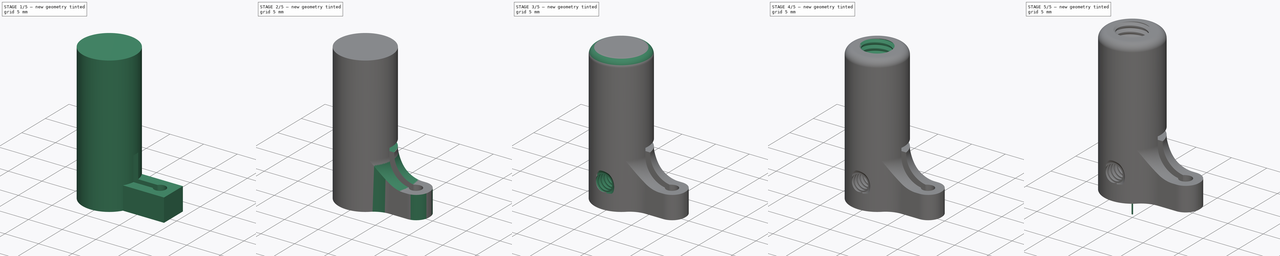
[diagram: build sequence overview — one tinted view per stage of 5, left to right]
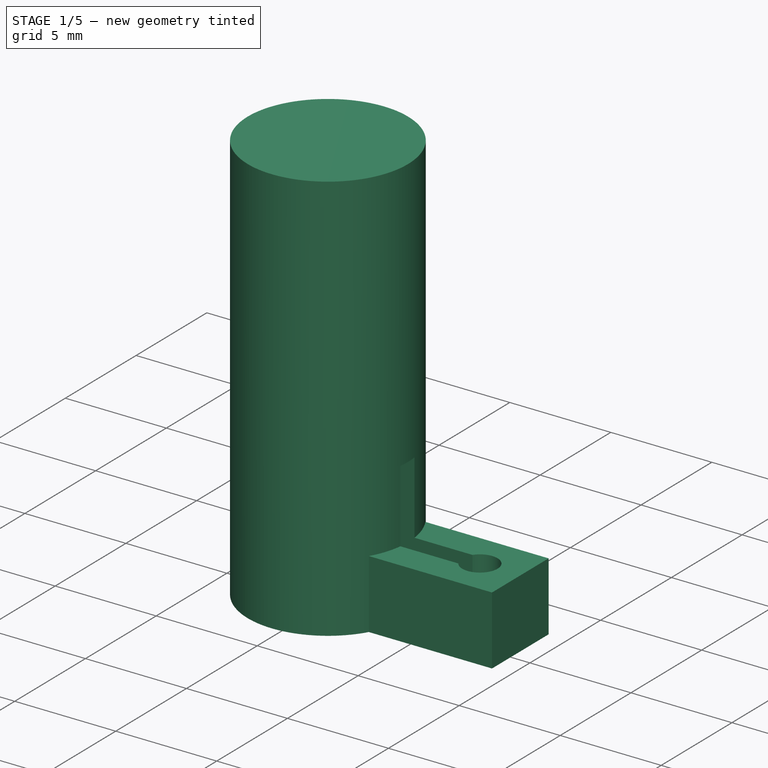
[diagram: stage 1 of 5 — iso view after this stage's code; geometry added in this stage tinted green]
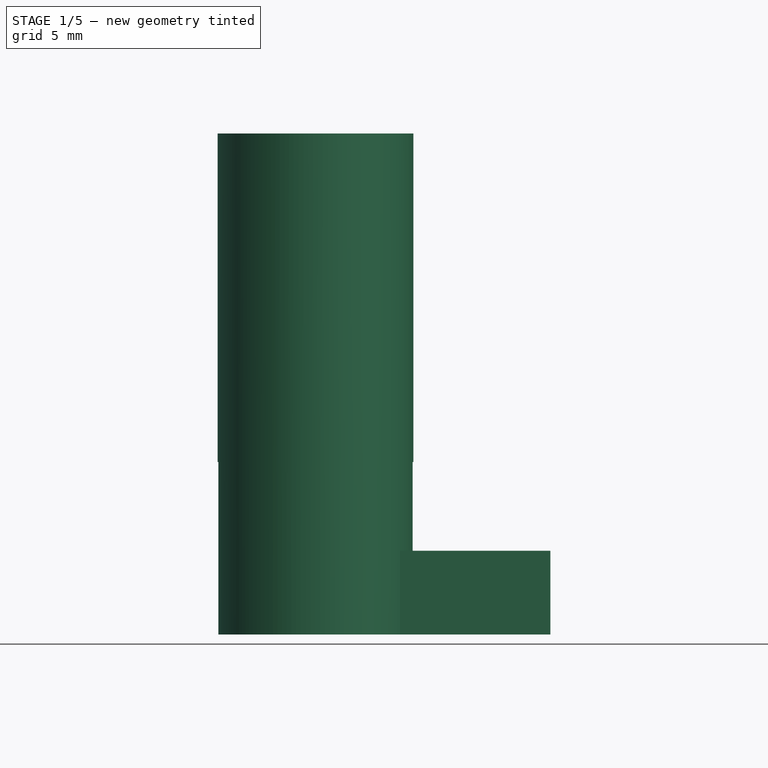
[diagram: stage 1 of 5 — front view after this stage's code; geometry added in this stage tinted green]
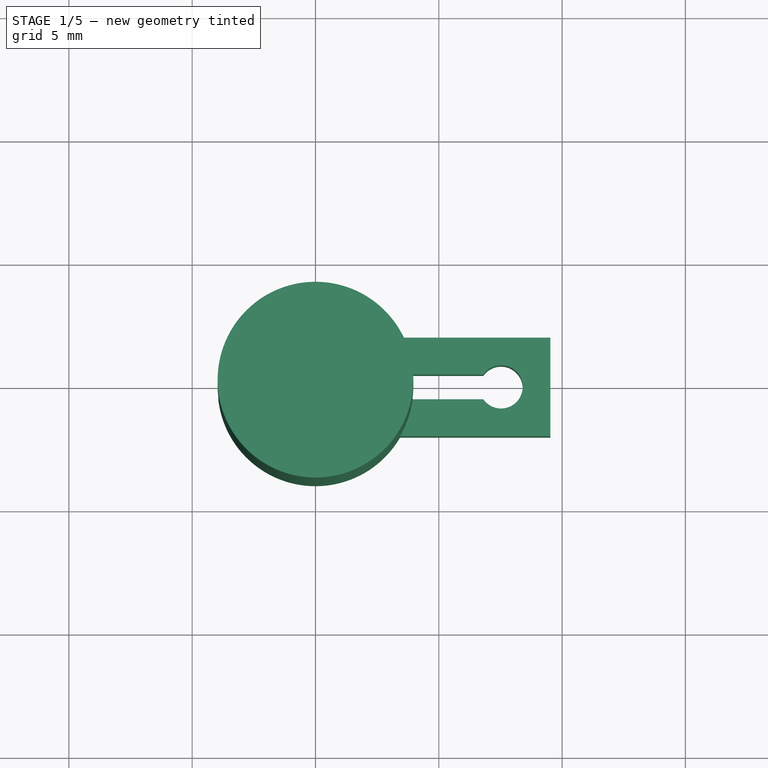
[diagram: stage 1 of 5 — top view after this stage's code; geometry added in this stage tinted green]
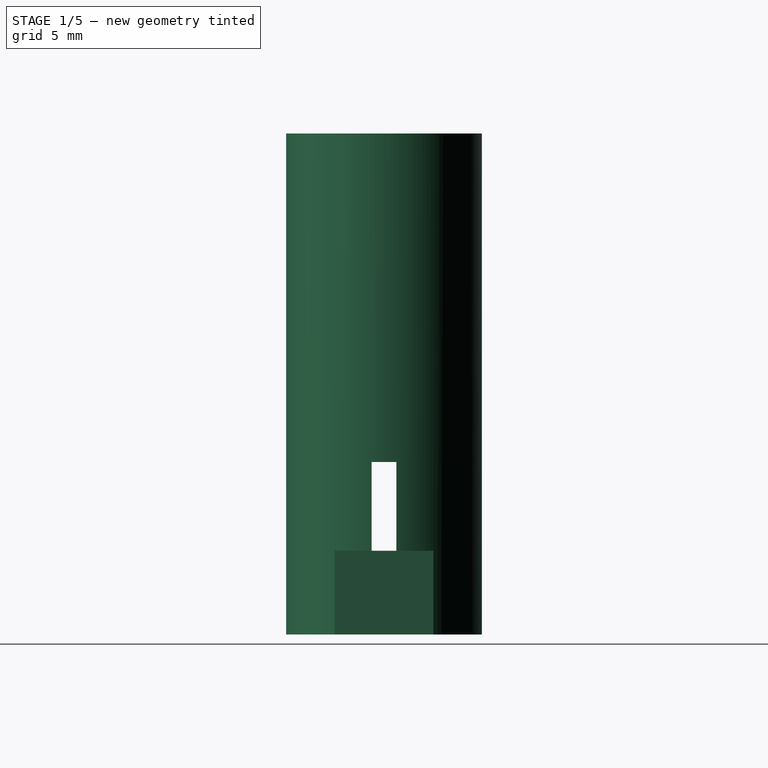
[diagram: stage 1 of 5 — right view after this stage's code; geometry added in this stage tinted green]
FCSTD DOCUMENT  (FreeCAD 0.21R33668 +7 (Git))
Label: Stereotax acute cannula holder v3
License: All rights reserved
LicenseURL: http://en.wikipedia.org/wiki/All_rights_reserved
objects: Sketcher::SketchObject×12, PartDesign::Pocket×6, PartDesign::Pad×4, PartDesign::Fillet×3, PartDesign::Body×2, PartDesign::SubtractiveHelix×2, PartDesign::Chamfer×1, Spreadsheet::Sheet×1
note: 46 computed .brp shape members not serialized (recipe doc carries the construction recipe); baked Part::Feature solids carry a one-line shape summary decoded from their .brp

FEATURE [Sketcher::SketchObject] Sketch  label="Rod profile"
  FullyConstrained = true
  MapMode = 5
  Support = -> [XY_Plane]
  sketch-geometry (1):
    g0: Circle CenterX=0 CenterY=0 CenterZ=0 NormalX=0 NormalY=0 NormalZ=1 AngleXU=0 Radius=3.96875
  constraints (2):
    c: Coincident(g0,g-1)
    c: Diameter(g0) = 7.9375
FEATURE [PartDesign::Pad] Pad
  Direction = (0,0,1)
  Length = 20.32
  Length2 = 10
  Profile = -> Sketch
  ReferenceAxis = -> Sketch [N_Axis]
  Type = 0
  expr: Length = <<params>>.ol
FEATURE [PartDesign::Body] Body001  label="Doric Cannula MFC_ZF1.25"
  Group = -> [Sketch002,Pad001,Chamfer,Sketch003,Sketch004,Pad002,Pocket]
  Origin = -> Origin001
  Placement = pos=(7.52856,0,0) rot=(0,0,1;0rad)
  Tip = -> Pocket
FEATURE [PartDesign::Pad] Pad003
  BaseFeature = -> Pad
  Direction = (0,-1,-2e-16)
  Length = 4
  Length2 = 10
  Midplane = true
  Profile = -> Sketch001
  ReferenceAxis = -> Sketch001 [N_Axis]
  Type = 0
  expr: Length = 4 mm
FEATURE [Sketcher::SketchObject] Sketch005  label="Slot"
  FullyConstrained = true
  MapMode = 5
  Placement = pos=(0,-8e-16,3.4) rot=(0,0,1;0rad)
  Support = -> [Pad003]
  expr: Constraints[0] = Spreadsheet.chd
  expr: Constraints[11] = <<params>>.hal - <<params>>.haw / 2
  expr: Constraints[6] = <<params>>.sw
  sketch-geometry (4):
    g0: ArcOfCircle CenterX=7.525 CenterY=3e-16 CenterZ=0 NormalX=0 NormalY=0 NormalZ=1 AngleXU=0 Radius=0.875 StartAngle=3.74984 EndAngle=8.81653
    g1: LineSegment StartX=6.80693 StartY=-0.5 StartZ=0 EndX=-6.35 EndY=-0.5 EndZ=0
    g2: LineSegment StartX=-6.35 StartY=0.5 StartZ=0 EndX=6.80693 EndY=0.5 EndZ=0
    g3: LineSegment StartX=-6.35 StartY=0.5 StartZ=0 EndX=-6.35 EndY=-0.5 EndZ=0
  constraints (12):
    c: Diameter(g0) = 1.75
    c: Symmetric(g0,g0,g-1)
    c: Horizontal(g2)
    c: Coincident(g0,g2)
    c: Coincident(g0,g1)
    c: Horizontal(g1)
    c: DistanceY(g0,g0) = 1
    c: Coincident(g3,g2)
    c: Coincident(g3,g1)
    c: Vertical(g3)
    c: DistanceX(g2) = -6.35
    c: DistanceX(g0) = 7.525
FEATURE [PartDesign::Pocket] Pocket001
  BaseFeature = -> Pad003
  Direction = (0,2e-16,-1)
  Length = 12.7
  Length2 = 3.596
  Profile = -> Sketch005
  ReferenceAxis = -> Sketch005 [N_Axis]
  Type = 4
  expr: Length2 = Spreadsheet.fch - Spreadsheet.hah
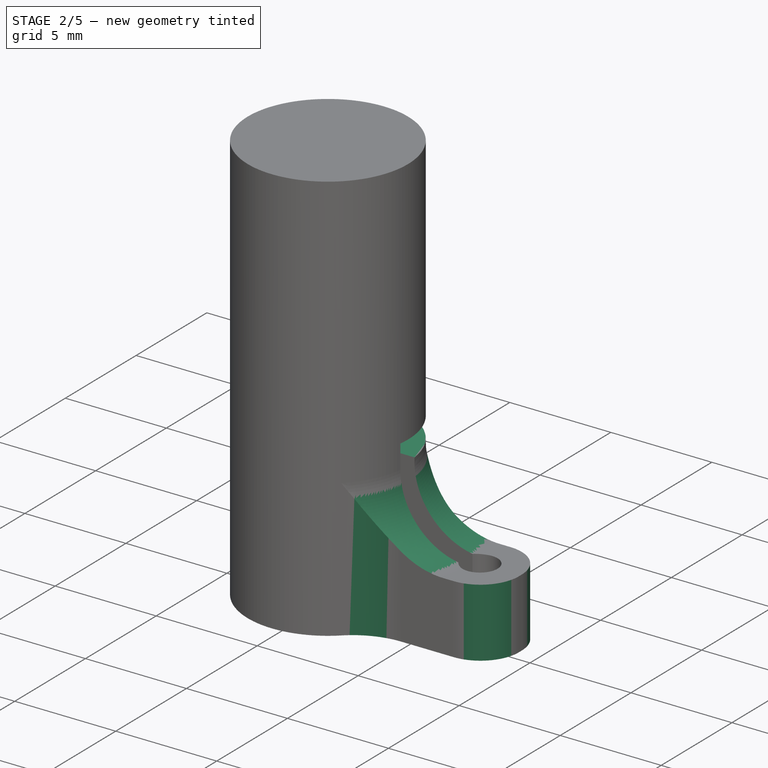
[diagram: stage 2 of 5 — iso view after this stage's code; geometry added in this stage tinted green]
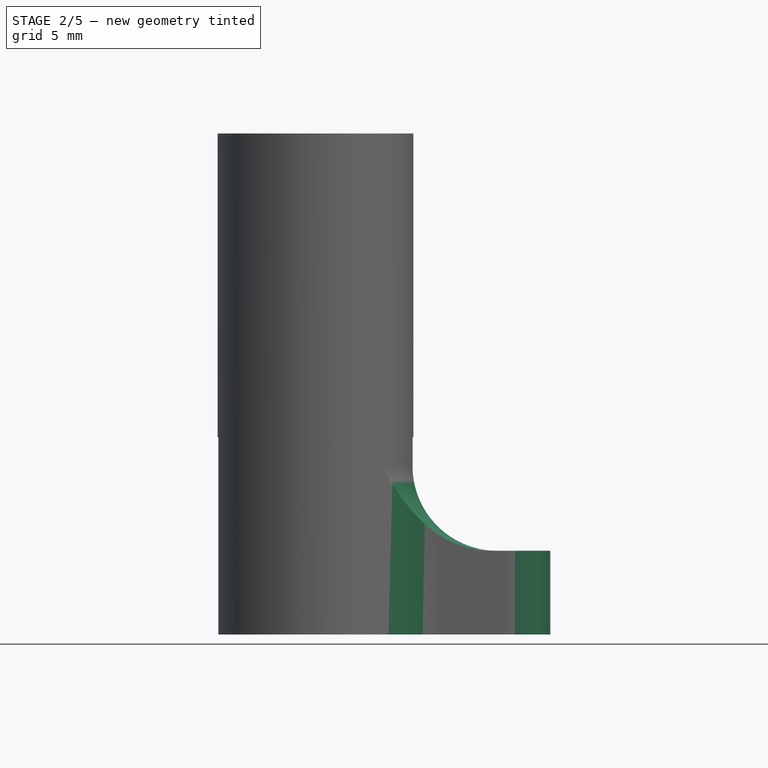
[diagram: stage 2 of 5 — front view after this stage's code; geometry added in this stage tinted green]
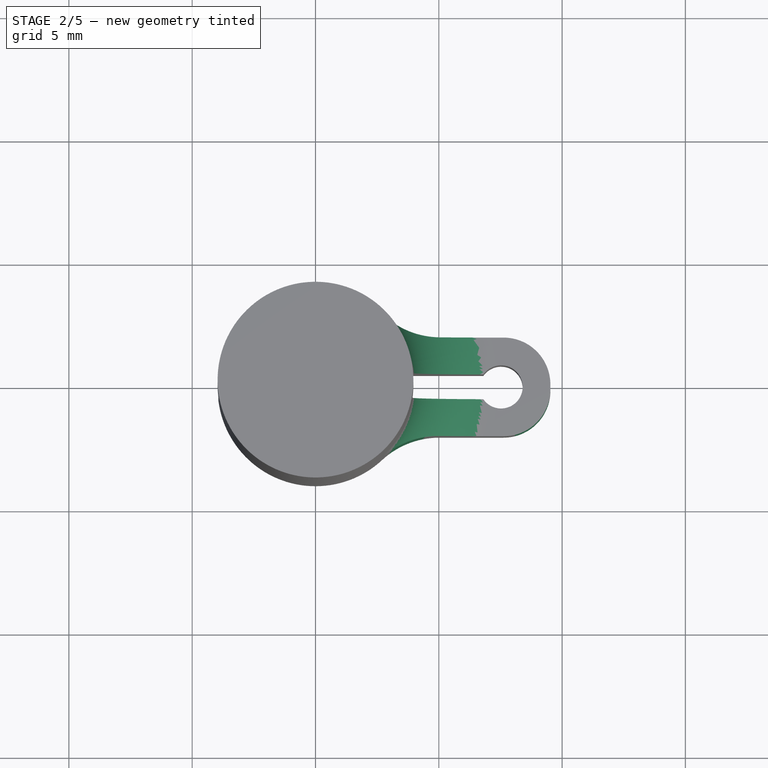
[diagram: stage 2 of 5 — top view after this stage's code; geometry added in this stage tinted green]
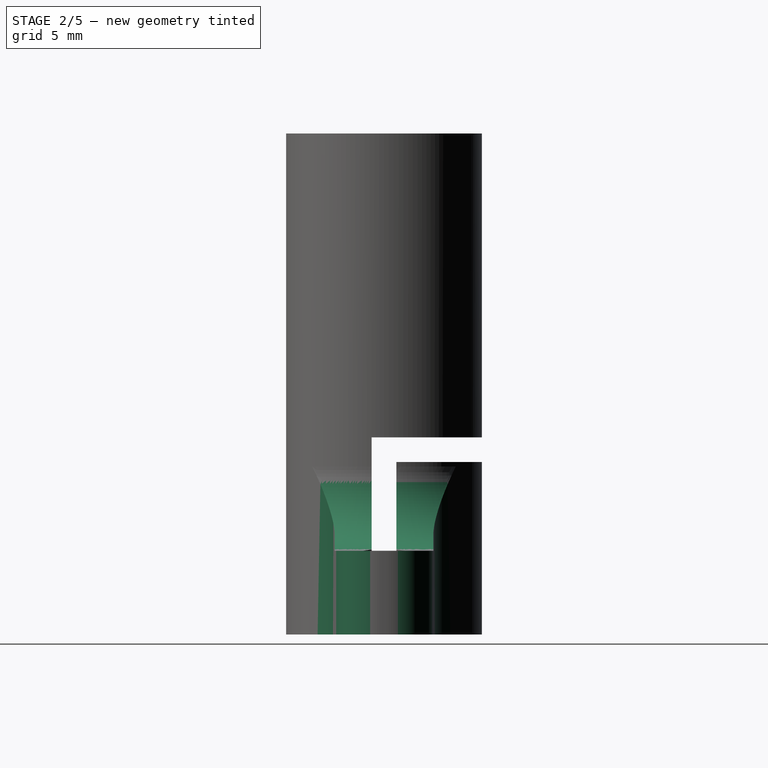
[diagram: stage 2 of 5 — right view after this stage's code; geometry added in this stage tinted green]
FEATURE [Sketcher::SketchObject] Sketch006  label="Flex arm cutoff"
  FullyConstrained = true
  MapMode = 5
  Placement = pos=(9.525,0,0) rot=(0.57735,0.57735,0.57735;2.0944rad)
  Support = -> [Pocket001]
  expr: Constraints[10] = Spreadsheet.fch
  expr: Constraints[11] = -<<params>>.sw / 2
  expr: Constraints[9] = <<params>>.sw
  sketch-geometry (4):
    g0: LineSegment StartX=-0.5 StartY=6.996 StartZ=0 EndX=5.08 EndY=6.996 EndZ=0
    g1: LineSegment StartX=5.08 StartY=6.996 StartZ=0 EndX=5.08 EndY=7.996 EndZ=0
    g2: LineSegment StartX=5.08 StartY=7.996 StartZ=0 EndX=-0.5 EndY=7.996 EndZ=0
    g3: LineSegment StartX=-0.5 StartY=7.996 StartZ=0 EndX=-0.5 EndY=6.996 EndZ=0
  constraints (12):
    c: Coincident(g0,g1)
    c: Coincident(g1,g2)
    c: Coincident(g2,g3)
    c: Coincident(g3,g0)
    c: Horizontal(g0)
    c: Horizontal(g2)
    c: Vertical(g1)
    c: Vertical(g3)
    c: DistanceX(g0) = 5.08
    c: DistanceY(g1,g1) = 1
    c: DistanceY(g0) = 6.996
    c: DistanceX(g2) = -0.5
FEATURE [PartDesign::Pocket] Pocket002
  BaseFeature = -> Pocket001
  Direction = (-1,0,0)
  Length = 5
  Length2 = 5
  Profile = -> Sketch006
  ReferenceAxis = -> Sketch006 [N_Axis]
  Type = 1
FEATURE [Spreadsheet::Sheet] Spreadsheet  label="params"
  cells = A2='Slot width; B2(sw)==1 mm; C2==1 mm; A3='Slot height; B3(sh)==1.5 "; C3==0.5 in; A4='Holder arm height; B4(hah)==3.4 mm; C4==2.5 mm; A5='Holder arm length; B5(hal)==0.375 "; A6='Holder arm width; B6(haw)==4 mm; A7='Flex cutoff height; B7(fch)==0.12 " * 2 + hah - 2.5 mm; A8='Cannula hole diameter; B8(chd)==1.75 mm; C8==1.25 mm; A9='Overall length; B9(ol)==0.8 "
FEATURE [Sketcher::SketchObject] Sketch007  label="Tapped screw hole profile"
  FullyConstrained = true
  MapMode = 5
  Placement = pos=(0,-0.25,0) rot=(0,0.707107,0.707107;3.14159rad)
  expr: Constraints[2] = Spreadsheet.fch / 2
  sketch-geometry (1):
    g0: Circle CenterX=0 CenterY=3.498 CenterZ=0 NormalX=0 NormalY=0 NormalZ=1 AngleXU=0 Radius=1.1303
  constraints (3):
    c: Diameter(g0) = 2.2606
    c: PointOnObject(g0,g-2)
    c: DistanceY(g0) = 3.498
FEATURE [PartDesign::Fillet] Fillet
  Base = -> Pocket002 [Edge19,Edge20,Edge28,Edge36]
  BaseFeature = -> Pocket002
  Radius = 3.4162
  SupportTransform = false
  UseAllEdges = false
  expr: Radius = 0.95 * (Spreadsheet.fch - Spreadsheet.hah)
FEATURE [PartDesign::Fillet] Fillet001
  Base = -> Fillet [Edge37,Edge46]
  BaseFeature = -> Fillet
  Radius = 1.9
  SupportTransform = false
  UseAllEdges = false
  expr: Radius = 0.95 * <<params>>.haw / 2
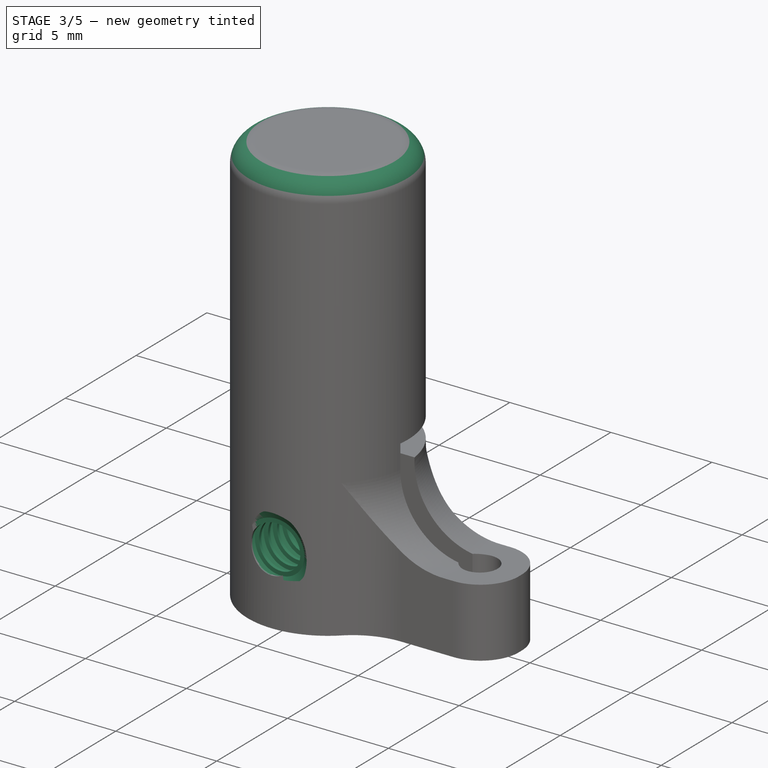
[diagram: stage 3 of 5 — iso view after this stage's code; geometry added in this stage tinted green]
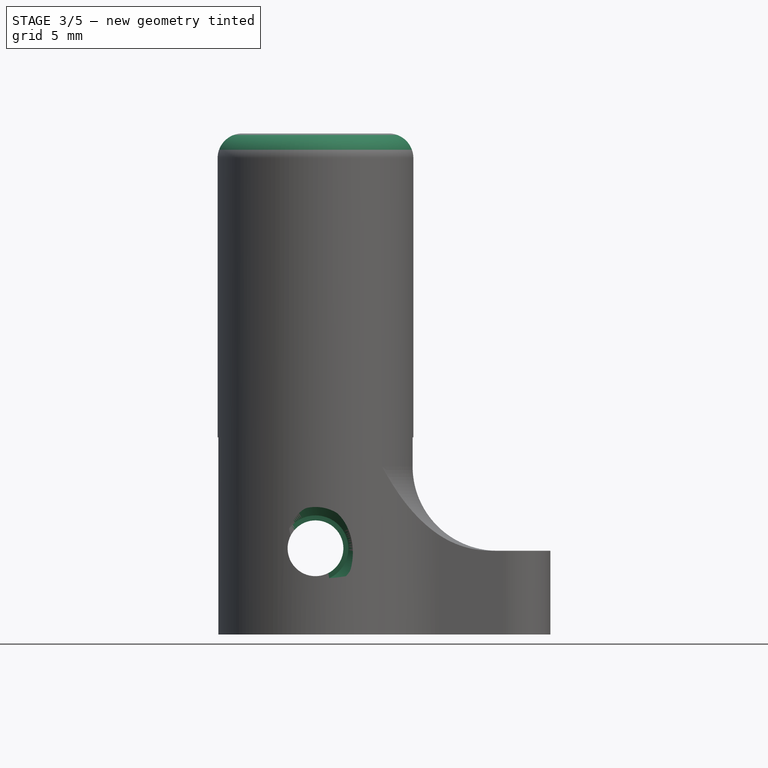
[diagram: stage 3 of 5 — front view after this stage's code; geometry added in this stage tinted green]
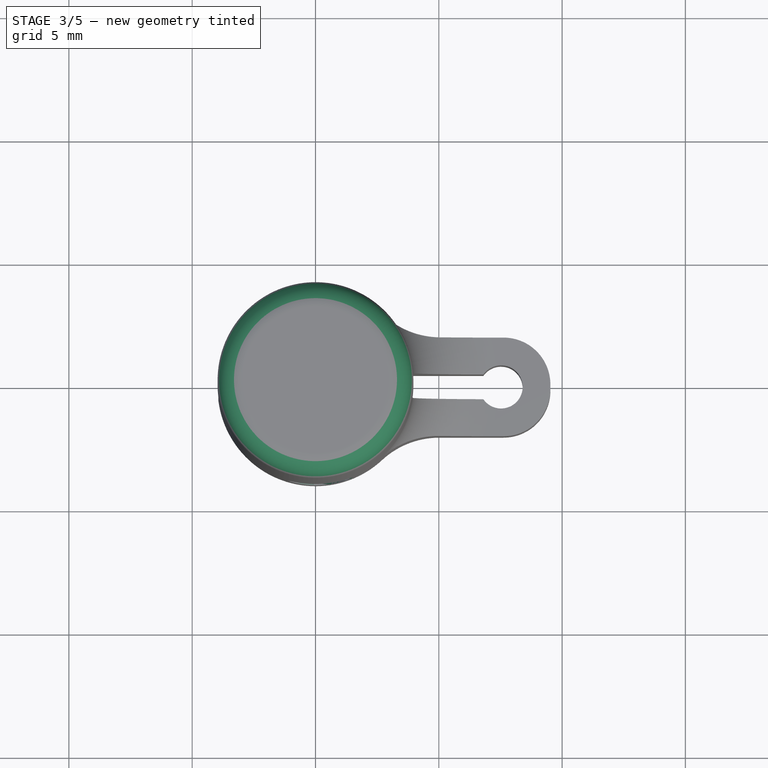
[diagram: stage 3 of 5 — top view after this stage's code; geometry added in this stage tinted green]
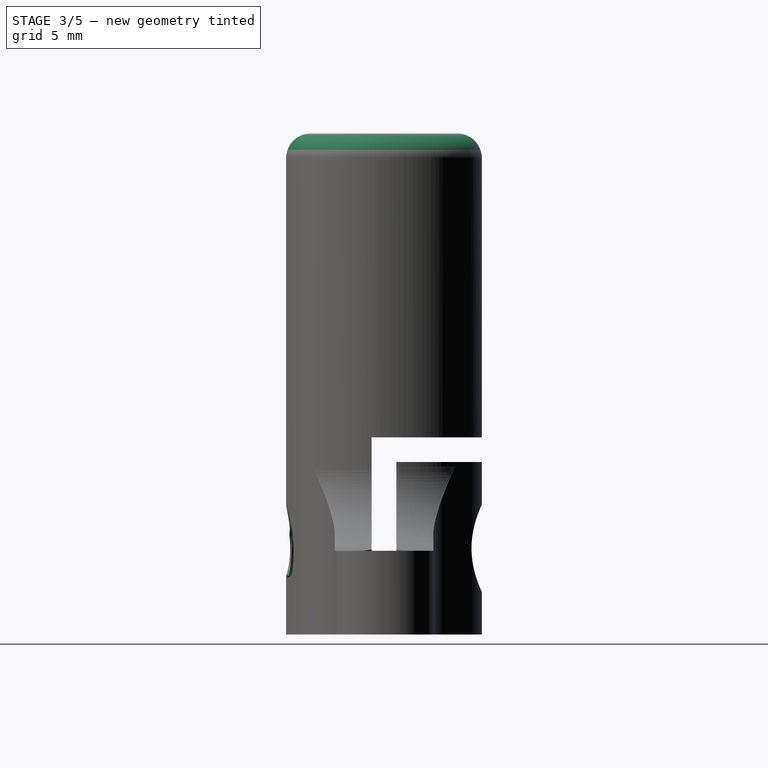
[diagram: stage 3 of 5 — right view after this stage's code; geometry added in this stage tinted green]
FEATURE [PartDesign::Pocket] Pocket003
  BaseFeature = -> Fillet001
  Direction = (0,-1,2e-16)
  Length = 5
  Length2 = 5
  Profile = -> Sketch007
  ReferenceAxis = -> Sketch007 [N_Axis]
  Type = 1
FEATURE [Sketcher::SketchObject] Sketch008  label="4-40 thread"
  FullyConstrained = true
  MapMode = 5
  Placement = pos=(0,-0.3937,3.498) rot=(0,0,1;0rad)
  expr: .Constraints.MajorRadius = 0.112 " / 2
  expr: .Constraints.MinorRadius = .Constraints.MajorRadius - 1.082532 * .Constraints.Pitch / 2
  expr: .Constraints.Pitch = 1 " / 40
  expr: .Placement.Base.z = Spreadsheet.fch / 2
  expr: Constraints[27] = .Constraints.Tolerance
  expr: Constraints[29] = .Constraints.Pitch / 4
  sketch-geometry (13):
    g0: LineSegment StartX=0 StartY=0.635 StartZ=0 EndX=0 EndY=0 EndZ=0
    g1: LineSegment StartX=1.0787 StartY=0.15875 StartZ=0 EndX=1.4224 EndY=0.357188 EndZ=0
    g2: LineSegment StartX=1.4224 StartY=0.357188 StartZ=0 EndX=1.4224 EndY=0.436562 EndZ=0
    g3: LineSegment StartX=1.4224 StartY=0.436562 StartZ=0 EndX=1.0787 EndY=0.635 EndZ=0
    g4: LineSegment StartX=0.824696 StartY=0.635 StartZ=0 EndX=1.1684 EndY=0.436562 EndZ=0
    g5: LineSegment StartX=1.1684 StartY=0.436562 StartZ=0 EndX=1.1684 EndY=0.357188 EndZ=0
    g6: LineSegment StartX=1.1684 StartY=0.357188 StartZ=0 EndX=0.824696 EndY=0.15875 EndZ=0
    g7: LineSegment StartX=1.3327 StartY=0.15875 StartZ=0 EndX=1.6764 EndY=0.357188 EndZ=0
    g8: LineSegment StartX=1.6764 StartY=0.436562 StartZ=0 EndX=1.3327 EndY=0.635 EndZ=0
    g9: LineSegment StartX=1.6764 StartY=0.436562 StartZ=0 EndX=1.6764 EndY=0.357188 EndZ=0
    g10: LineSegment StartX=1.3327 StartY=0.635 StartZ=0 EndX=0.570696 EndY=0.635 EndZ=0
    g11: LineSegment StartX=0.570696 StartY=0.635 StartZ=0 EndX=0.570696 EndY=0.15875 EndZ=0
    g12: LineSegment StartX=0.570696 StartY=0.15875 StartZ=0 EndX=1.3327 EndY=0.15875 EndZ=0
  constraints (41):
    c: Vertical(g0)
    c: DistanceY(g0,g0) = 0.635  'Pitch'
    c: Coincident(g1,g2)
    c: Vertical(g2)
    c: Coincident(g2,g3)
    c: DistanceY(g3,g0) = 0
    c: DistanceX(g0,g2) = 1.4224  'MajorRadius'
    c: DistanceX(g0,g3) = 1.0787  'MinorRadius'
    c: DistanceX(g1,g3) = 0
    c: Angle(g3,g1) = 1.0472
    c: Equal(g3,g1)
    c: Coincident(g0,g-1)
    c: Coincident(g4,g5)
    c: Coincident(g5,g6)
    c: Vertical(g5)
    c: Equal(g4,g3)
    c: Parallel(g4,g3)
    c: Equal(g6,g1)
    c: Parallel(g6,g1)
    c: Equal(g5,g2)
    c: DistanceY(g4,g3) = 0
    c: Equal(g8,g3)
    c: Parallel(g8,g3)
    c: Equal(g7,g1)
    c: Parallel(g7,g1)
    c: DistanceY(g3,g8) = 0
    c: DistanceX(g4,g3) = 0.254  'Tolerance'
    c: DistanceX(g3,g8) = 0.254
    c: DistanceY(g7,g1) = 0
    c: DistanceY(g1) = 0.15875
    c: Coincident(g9,g8)
    c: Coincident(g9,g7)
    c: Vertical(g9)
    c: Coincident(g8,g10)
    c: Horizontal(g10)
    c: Coincident(g10,g11)
    c: Vertical(g11)
    c: Coincident(g11,g12)
    c: Coincident(g12,g7)
    c: Horizontal(g12)
    c: DistanceX(g12,g12) = 0.762
FEATURE [PartDesign::SubtractiveHelix] SubtractiveHelix
  Angle = 0
  Axis = (0,1,0)
  Base = (0,-0.3937,3.498)
  BaseFeature = -> Pocket003
  Growth = 0
  HasBeenEdited = true
  Height = 5.08
  LeftHanded = false
  Mode = 0
  Outside = false
  Pitch = 0.635
  Profile = -> Sketch008
  ReferenceAxis = -> Sketch008 [V_Axis]
  Reversed = true
  Turns = 8
  expr: Pitch = 1 " / 40
FEATURE [Sketcher::SketchObject] Sketch009  label="Clearance screw hole profile"
  FullyConstrained = true
  MapMode = 5
  Placement = pos=(0,0.5,1e-16) rot=(1,0,0;1.5708rad)
  Support = -> [SubtractiveHelix]
  expr: Constraints[1] = Spreadsheet.fch / 2
  sketch-geometry (1):
    g0: Circle CenterX=0 CenterY=3.498 CenterZ=0 NormalX=0 NormalY=0 NormalZ=1 AngleXU=0 Radius=1.778
  constraints (3):
    c: Diameter(g0) = 3.556
    c: DistanceY(g0) = 3.498
    c: PointOnObject(g0,g-2)
FEATURE [PartDesign::Pocket] Pocket004
  BaseFeature = -> SubtractiveHelix
  Direction = (0,1,2e-16)
  Length = 5
  Length2 = 5
  Profile = -> Sketch009
  ReferenceAxis = -> Sketch009 [N_Axis]
  Type = 1
FEATURE [PartDesign::Fillet] Fillet002
  Base = -> Pocket004 [Face32]
  BaseFeature = -> Pocket004
  Radius = 1.00076
  SupportTransform = false
  UseAllEdges = false
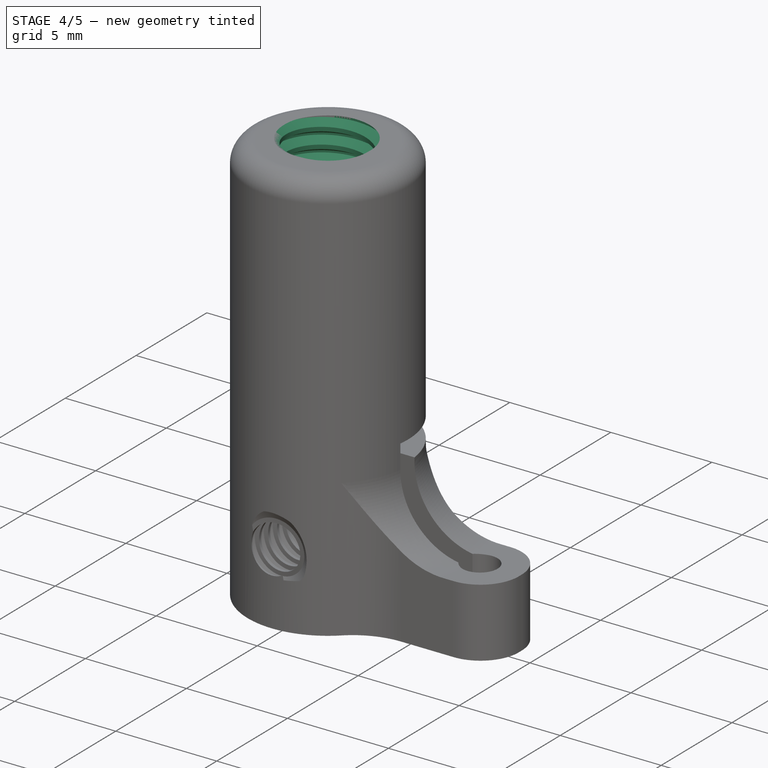
[diagram: stage 4 of 5 — iso view after this stage's code; geometry added in this stage tinted green]
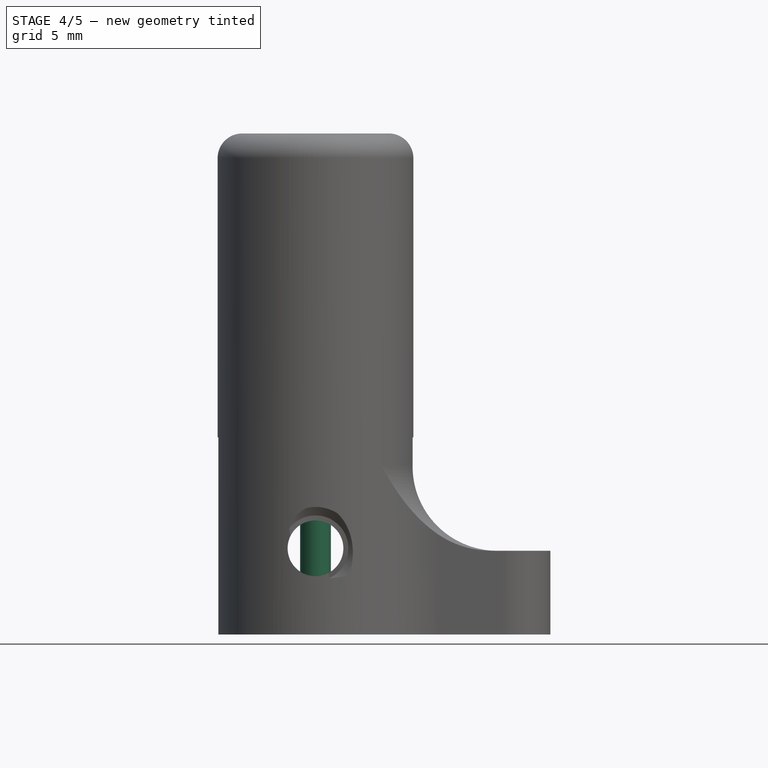
[diagram: stage 4 of 5 — front view after this stage's code; geometry added in this stage tinted green]
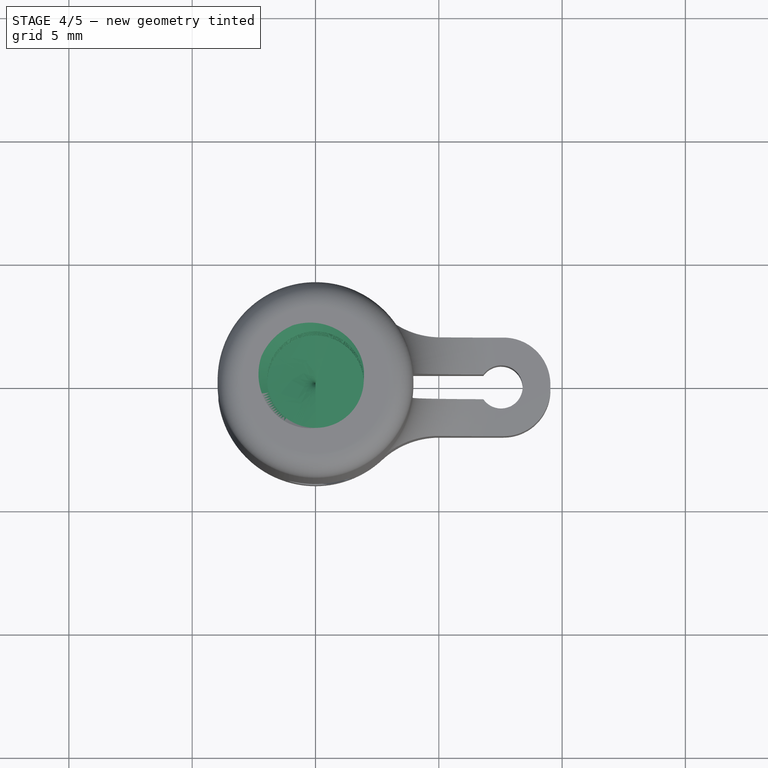
[diagram: stage 4 of 5 — top view after this stage's code; geometry added in this stage tinted green]
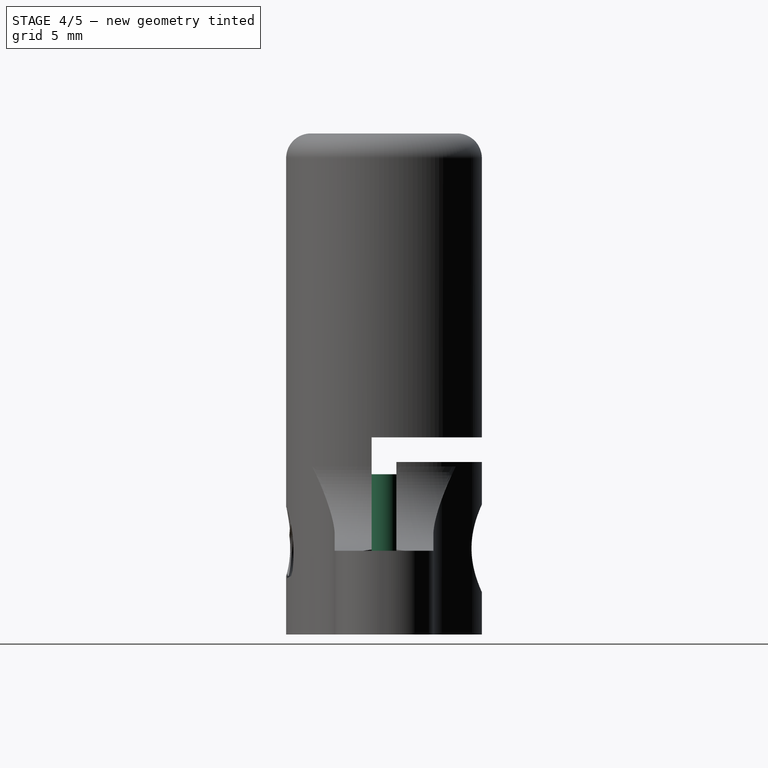
[diagram: stage 4 of 5 — right view after this stage's code; geometry added in this stage tinted green]
FEATURE [Sketcher::SketchObject] Sketch001  label="Holder arm"
  FullyConstrained = true
  MapMode = 5
  Placement = pos=(0,0,0) rot=(1,0,0;1.5708rad)
  Support = -> [XZ_Plane]
  expr: Constraints[10] = <<params>>.hah
  expr: Constraints[9] = <<params>>.hal
  sketch-geometry (4):
    g0: LineSegment StartX=0 StartY=0 StartZ=0 EndX=9.525 EndY=0 EndZ=0
    g1: LineSegment StartX=9.525 StartY=0 StartZ=0 EndX=9.525 EndY=3.4 EndZ=0
    g2: LineSegment StartX=9.525 StartY=3.4 StartZ=0 EndX=0 EndY=3.4 EndZ=0
    g3: LineSegment StartX=0 StartY=3.4 StartZ=0 EndX=0 EndY=0 EndZ=0
  constraints (11):
    c: Coincident(g0,g1)
    c: Coincident(g1,g2)
    c: Coincident(g2,g3)
    c: Coincident(g3,g0)
    c: Horizontal(g0)
    c: Horizontal(g2)
    c: Vertical(g1)
    c: Vertical(g3)
    c: Coincident(g0,g-1)
    c: DistanceX(g2,g2) = 9.525
    c: DistanceY(g1,g1) = 3.4
FEATURE [Sketcher::SketchObject] Sketch002  label="Ferrule profile"
  FullyConstrained = true
  MapMode = 5
  Support = -> [XY_Plane001]
  expr: Constraints[0] = 1.25 mm
  sketch-geometry (1):
    g0: Circle CenterX=0 CenterY=0 CenterZ=0 NormalX=0 NormalY=0 NormalZ=1 AngleXU=0 Radius=0.625
  constraints (3):
    c: Diameter(g0) = 1.25
    c: DistanceX(g0) = 0
    c: DistanceY(g0) = 0
FEATURE [PartDesign::Pad] Pad001
  Direction = (0,0,1)
  Length = 6.5
  Length2 = 10
  Profile = -> Sketch002
  ReferenceAxis = -> Sketch002 [N_Axis]
  Type = 0
  expr: Length = 6.5 mm
FEATURE [Sketcher::SketchObject] Sketch010  label="Mounting hole profile"
  FullyConstrained = true
  MapMode = 5
  Placement = pos=(0,0,20.32) rot=(0,0,1;0rad)
  Support = -> [Fillet002]
  expr: Constraints[1] = <<8-32 thread>>.Constraints.MinorRadius + <<8-32 thread>>.Constraints.Tolerance
  sketch-geometry (1):
    g0: Circle CenterX=0 CenterY=0 CenterZ=0 NormalX=0 NormalY=0 NormalZ=1 AngleXU=0 Radius=1.95797
  constraints (2):
    c: Coincident(g0,g-1)
    c: Radius(g0) = 1.95797
FEATURE [Sketcher::SketchObject] Sketch011  label="8-32 thread"
  FullyConstrained = true
  MapMode = 5
  Placement = pos=(0,0,20.32) rot=(1,0,0;1.5708rad)
  expr: .Constraints.MajorRadius = 0.164 " / 2
  expr: .Constraints.MinorRadius = .Constraints.MajorRadius - 1.082532 * .Constraints.Pitch / 2
  expr: .Constraints.Pitch = 1 " / 32
  expr: .Placement.Base.z = <<params>>.ol
  expr: Constraints[27] = .Constraints.Tolerance
  expr: Constraints[29] = .Constraints.Pitch / 4
  sketch-geometry (13):
    g0: LineSegment StartX=0 StartY=0.79375 StartZ=0 EndX=0 EndY=0 EndZ=0
    g1: LineSegment StartX=1.65317 StartY=0.198437 StartZ=0 EndX=2.0828 EndY=0.446484 EndZ=0
    g2: LineSegment StartX=2.0828 StartY=0.446484 StartZ=0 EndX=2.0828 EndY=0.545703 EndZ=0
    g3: LineSegment StartX=2.0828 StartY=0.545703 StartZ=0 EndX=1.65317 EndY=0.79375 EndZ=0
    g4: LineSegment StartX=1.34837 StartY=0.79375 StartZ=0 EndX=1.778 EndY=0.545703 EndZ=0
    g5: LineSegment StartX=1.778 StartY=0.545703 StartZ=0 EndX=1.778 EndY=0.446484 EndZ=0
    g6: LineSegment StartX=1.778 StartY=0.446484 StartZ=0 EndX=1.34837 EndY=0.198437 EndZ=0
    g7: LineSegment StartX=1.95797 StartY=0.198437 StartZ=0 EndX=2.3876 EndY=0.446484 EndZ=0
    g8: LineSegment StartX=2.3876 StartY=0.545703 StartZ=0 EndX=1.95797 EndY=0.79375 EndZ=0
    g9: LineSegment StartX=2.3876 StartY=0.545703 StartZ=0 EndX=2.3876 EndY=0.446484 EndZ=0
    g10: LineSegment StartX=1.95797 StartY=0.79375 StartZ=0 EndX=0 EndY=0.79375 EndZ=0
    g11: LineSegment StartX=0 StartY=0.79375 StartZ=0 EndX=0 EndY=0.198437 EndZ=0
    g12: LineSegment StartX=0 StartY=0.198437 StartZ=0 EndX=1.95797 EndY=0.198437 EndZ=0
  constraints (40):
    c: Vertical(g0)
    c: DistanceY(g0,g0) = 0.79375  'Pitch'
    c: Coincident(g1,g2)
    c: Vertical(g2)
    c: Coincident(g2,g3)
    c: DistanceY(g3,g0) = 0
    c: DistanceX(g0,g2) = 2.0828  'MajorRadius'
    c: DistanceX(g0,g3) = 1.65317  'MinorRadius'
    c: DistanceX(g1,g3) = 0
    c: Angle(g3,g1) = 1.0472
    c: Equal(g3,g1)
    c: Coincident(g0,g-1)
    c: Coincident(g4,g5)
    c: Coincident(g5,g6)
    c: Vertical(g5)
    c: Equal(g4,g3)
    c: Parallel(g4,g3)
    c: Equal(g6,g1)
    c: Parallel(g6,g1)
    c: Equal(g5,g2)
    c: DistanceY(g4,g3) = 0
    c: Equal(g8,g3)
    c: Parallel(g8,g3)
    c: Equal(g7,g1)
    c: Parallel(g7,g1)
    c: DistanceY(g3,g8) = 0
    c: DistanceX(g4,g3) = 0.3048  'Tolerance'
    c: DistanceX(g3,g8) = 0.3048
    c: DistanceY(g7,g1) = 0
    c: DistanceY(g1) = 0.198437
    c: Coincident(g9,g8)
    c: Coincident(g9,g7)
    c: Vertical(g9)
    c: Coincident(g8,g10)
    c: Coincident(g10,g0)
    c: Coincident(g10,g11)
    c: PointOnObject(g11,g0)
    c: Coincident(g11,g12)
    c: Coincident(g12,g7)
    c: Horizontal(g12)
FEATURE [PartDesign::Pocket] Pocket005
  BaseFeature = -> Fillet002
  Direction = (0,0,-1)
  Length = 9.525
  Length2 = 5
  Profile = -> Sketch010
  ReferenceAxis = -> Sketch010 [N_Axis]
  Type = 0
FEATURE [PartDesign::SubtractiveHelix] SubtractiveHelix001
  Angle = 0
  Axis = (0,-4e-16,1)
  Base = (0,0,20.32)
  BaseFeature = -> Pocket005
  Growth = 0
  HasBeenEdited = true
  Height = 10.16
  LeftHanded = false
  Mode = 0
  Outside = false
  Pitch = 0.79375
  Profile = -> Sketch011
  ReferenceAxis = -> Sketch011 [V_Axis]
  Reversed = true
  Turns = 12.8
  expr: Height = 0.4 "
  expr: Pitch = 1 " / 32
FEATURE [PartDesign::Body] Body
  Group = -> [Sketch,Pad,Sketch001,Pad003,Sketch005,Pocket001,Sketch006,Pocket002,Sketch007,Fillet,Fillet001,Pocket003,Sketch008,SubtractiveHelix,Sketch009,Pocket004,Fillet002,Sketch010,Sketch011,Pocket005,SubtractiveHelix001]
  Origin = -> Origin
  Tip = -> SubtractiveHelix001
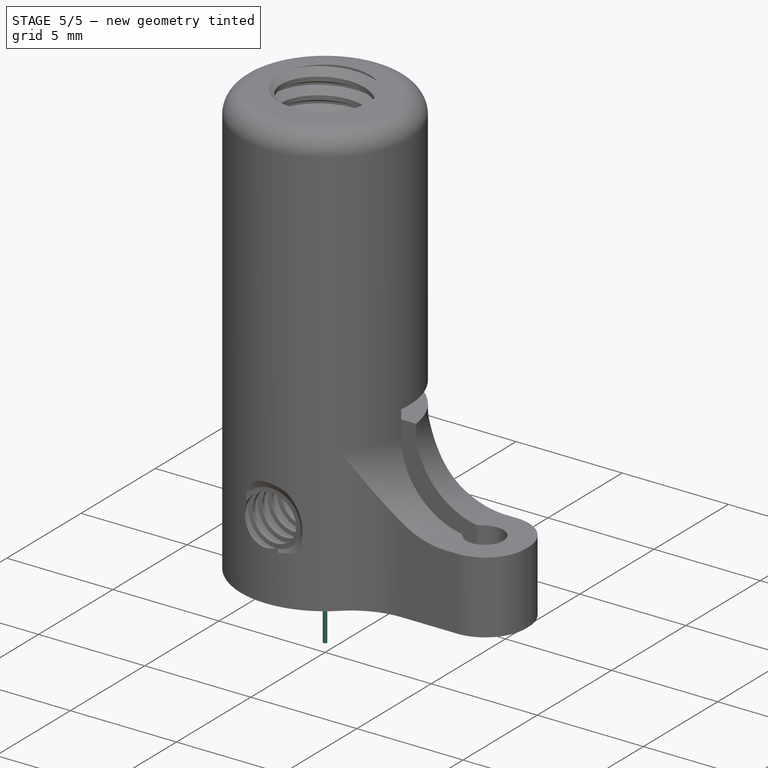
[diagram: stage 5 of 5 — iso view after this stage's code; geometry added in this stage tinted green]
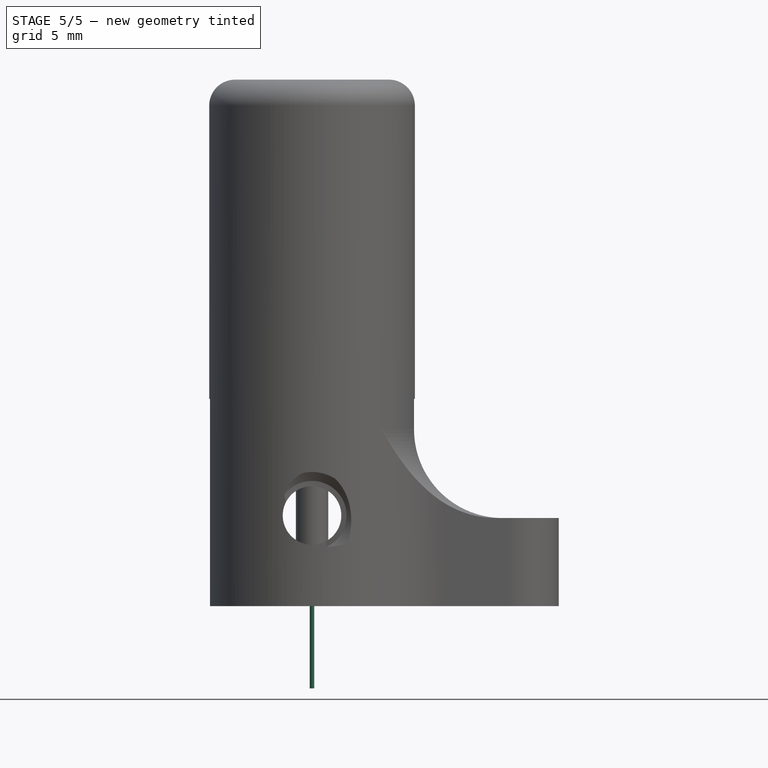
[diagram: stage 5 of 5 — front view after this stage's code; geometry added in this stage tinted green]
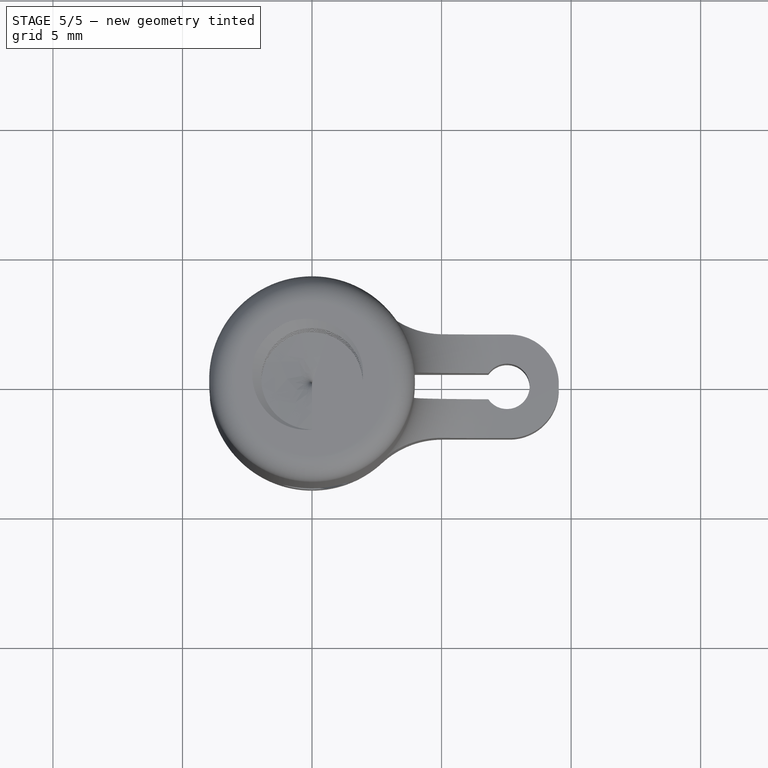
[diagram: stage 5 of 5 — top view after this stage's code; geometry added in this stage tinted green]
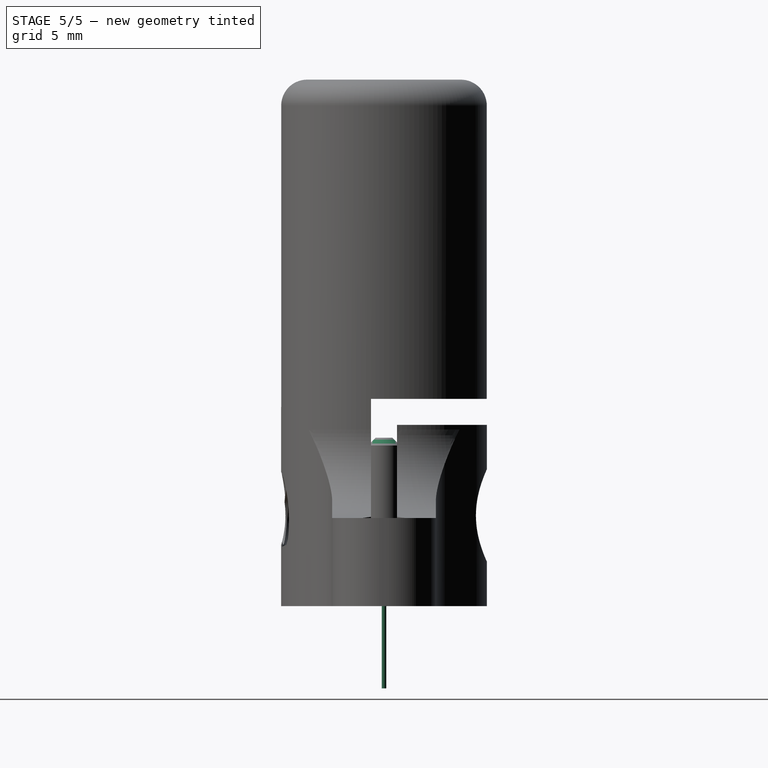
[diagram: stage 5 of 5 — right view after this stage's code; geometry added in this stage tinted green]
FEATURE [PartDesign::Chamfer] Chamfer
  Angle = 45
  Base = -> Pad001 [Edge3]
  BaseFeature = -> Pad001
  ChamferType = 0
  FlipDirection = false
  Size = 0.3
  Size2 = 1
  SupportTransform = false
  UseAllEdges = false
  expr: Size = 0.3 mm
FEATURE [Sketcher::SketchObject] Sketch003  label="OpticalAperture"
  ExternalGeometry = -> [Chamfer]
  FullyConstrained = true
  MapMode = 5
  Placement = pos=(0,0,6.5) rot=(0,0,1;0rad)
  Support = -> [Chamfer]
  sketch-geometry (1):
    g0: Circle CenterX=0 CenterY=0 CenterZ=0 NormalX=0 NormalY=0 NormalZ=1 AngleXU=0 Radius=0.04445
  constraints (2):
    c: Coincident(g0,g-3)
    c: Diameter(g0) = 0.0889
FEATURE [Sketcher::SketchObject] Sketch004
  ExternalGeometry = -> [Chamfer]
  FullyConstrained = true
  MapMode = 5
  Placement = pos=(0,0,0) rot=(1,0,0;3.14159rad)
  Support = -> [Chamfer]
  sketch-geometry (1):
    g0: Circle CenterX=0 CenterY=0 CenterZ=0 NormalX=0 NormalY=0 NormalZ=1 AngleXU=0 Radius=0.08636
  constraints (2):
    c: Coincident(g0,g-3)
    c: Diameter(g0) = 0.17272
FEATURE [PartDesign::Pad] Pad002
  BaseFeature = -> Chamfer
  Direction = (0,0,-1)
  Length = 3.175
  Length2 = 10
  Profile = -> Sketch004
  ReferenceAxis = -> Sketch004 [N_Axis]
  Type = 0
FEATURE [PartDesign::Pocket] Pocket
  BaseFeature = -> Pad002
  Direction = (0,0,-1)
  Length = 5
  Length2 = 5
  Profile = -> Sketch003
  ReferenceAxis = -> Sketch003 [N_Axis]
  Type = 1
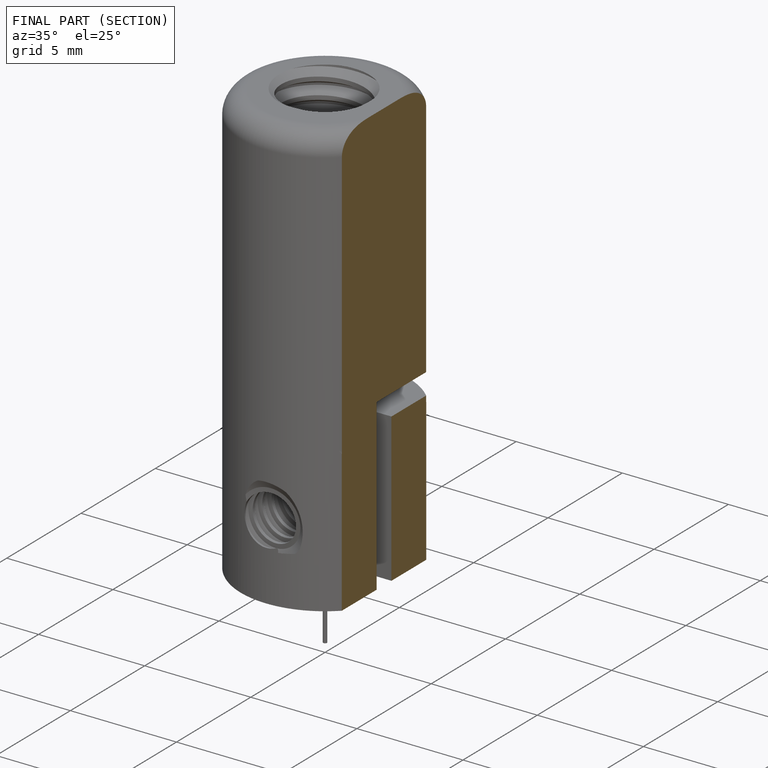
[diagram: finished part — half-section view (interior)]
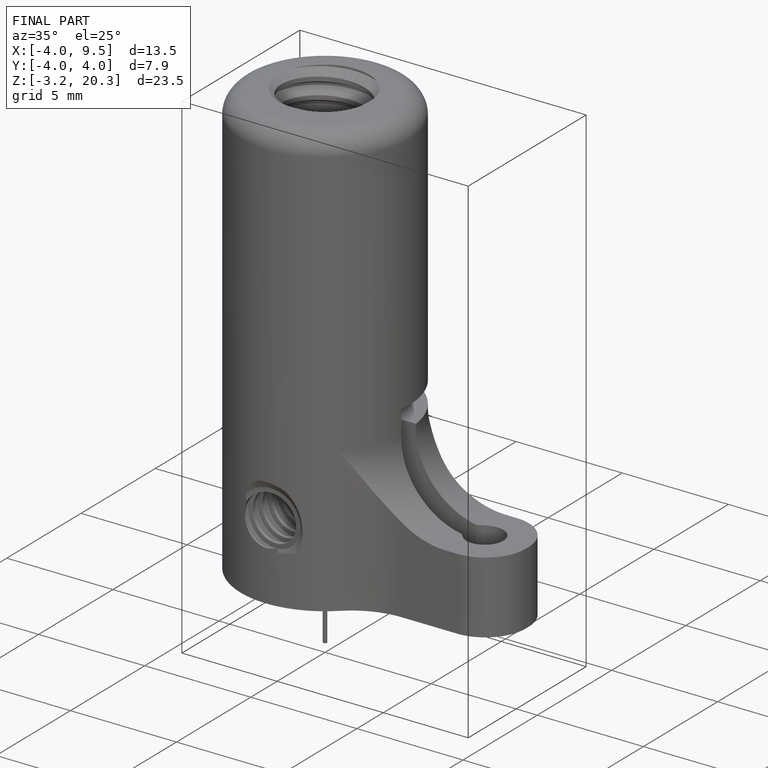
[diagram: finished part — iso view with bounding-box wireframe]
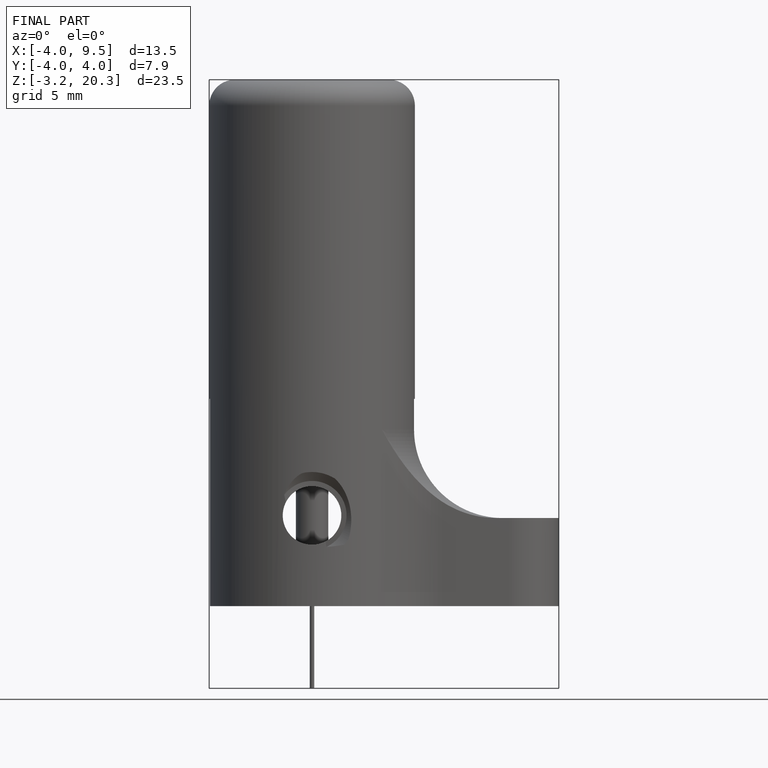
[diagram: finished part — front view with bounding-box wireframe]
